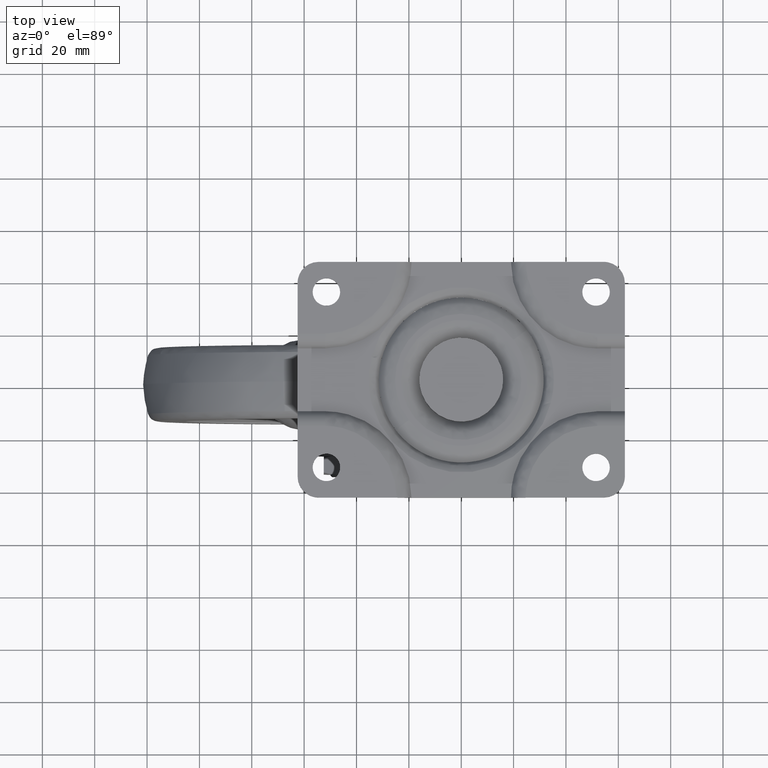
[diagram: clean part render]
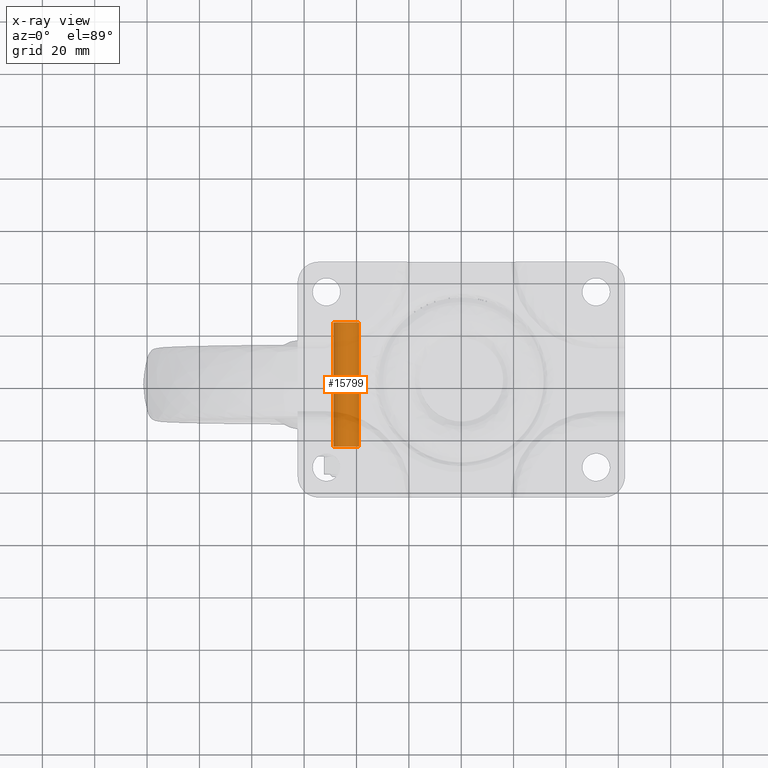
[diagram: x-ray — body ghosted, one internal face saturated and labeled with its STEP entity id]
A machine part, top view, then the same camera in x-ray: the body is ghosted and one INTERNAL B-rep face — a face not visible from any outside direction — is saturated and labeled: STEP entity #15799.
In plain terms, the highlighted face is a freeform B-spline surface patch.
Its self-contained STEP definition (entity closure, byte-faithful):
#15344=CARTESIAN_POINT('',(-41.313502063021957,23.721755696872950,-108.283042704020200));
#15345=VERTEX_POINT('',#15344);
#15346=CARTESIAN_POINT('',(-39.118519964524523,23.721755696872929,-113.582198070313890));
#15347=VERTEX_POINT('',#15346);
#15348=CARTESIAN_POINT('',(-41.313502063021957,23.721755696872957,-108.283042704020250));
#15349=CARTESIAN_POINT('',(-38.999999999930928,23.721755696872954,-109.756905985890090));
#15350=CARTESIAN_POINT('',(-38.999999999959030,23.721755696872940,-112.499999999915500));
#15351=CARTESIAN_POINT('',(-38.999999999964650,23.721755696872933,-113.047589058698190));
#15352=CARTESIAN_POINT('',(-39.118519964524523,23.721755696872929,-113.582198070313880));
#15360=(BOUNDED_CURVE()B_SPLINE_CURVE(2,(#15348,#15349,#15350,#15351,#15352),.UNSPECIFIED.,.F.,.U.)B_SPLINE_CURVE_WITH_KNOTS((3,2,3),(0.091950072917915,0.250000000000000,0.287040114693781),.UNSPECIFIED.)CURVE()GEOMETRIC_REPRESENTATION_ITEM()RATIONAL_B_SPLINE_CURVE((0.863791041263228,0.814832992494787,1.0,0.956604806328477,0.926068516262970))REPRESENTATION_ITEM(''));
#15361=EDGE_CURVE('',#15345,#15347,#15360,.T.);
#15428=CARTESIAN_POINT('',(-44.0,23.721755696872901,-107.500000000000100));
#15429=VERTEX_POINT('',#15428);
#15430=CARTESIAN_POINT('',(-44.0,23.721755696872901,-107.500000000000100));
#15431=CARTESIAN_POINT('',(-42.542632969461366,23.721755696872929,-107.499999999936620));
#15432=CARTESIAN_POINT('',(-41.313502063021957,23.721755696872957,-108.283042704020250));
#15440=(BOUNDED_CURVE()B_SPLINE_CURVE(2,(#15430,#15431,#15432),.UNSPECIFIED.,.F.,.U.)B_SPLINE_CURVE_WITH_KNOTS((3,3),(0.0,0.091950072917915),.UNSPECIFIED.)CURVE()GEOMETRIC_REPRESENTATION_ITEM()RATIONAL_B_SPLINE_CURVE((1.0,0.892273788691760,0.863791041263228))REPRESENTATION_ITEM(''));
#15441=EDGE_CURVE('',#15429,#15345,#15440,.T.);
#15449=CARTESIAN_POINT('',(-48.881480035475477,23.721755696872929,-111.417801929686110));
#15450=VERTEX_POINT('',#15449);
#15466=CARTESIAN_POINT('',(-48.881480035475477,23.721755696872926,-111.417801929686120));
#15467=CARTESIAN_POINT('',(-48.012924257776049,23.721755696872915,-107.500000000016390));
#15468=CARTESIAN_POINT('',(-44.0,23.721755696872901,-107.500000000000100));
#15476=(BOUNDED_CURVE()B_SPLINE_CURVE(2,(#15466,#15467,#15468),.UNSPECIFIED.,.F.,.U.)B_SPLINE_CURVE_WITH_KNOTS((3,3),(0.787040114693780,1.0),.UNSPECIFIED.)CURVE()GEOMETRIC_REPRESENTATION_ITEM()RATIONAL_B_SPLINE_CURVE((0.926068516262970,0.750501974858071,1.0))REPRESENTATION_ITEM(''));
#15477=EDGE_CURVE('',#15450,#15429,#15476,.T.);
#15695=CARTESIAN_POINT('',(-39.118518167389162,-23.724622602427601,-113.582189963832900));
#15696=VERTEX_POINT('',#15695);
#15697=CARTESIAN_POINT('',(-39.118518167389162,-23.724622602427601,-113.582189963832900));
#15698=CARTESIAN_POINT('',(-39.118519964524523,23.721755696872929,-113.582198070313890));
#15699=QUASI_UNIFORM_CURVE('',1,(#15697,#15698),.UNSPECIFIED.,.F.,.U.);
#15700=EDGE_CURVE('',#15696,#15347,#15699,.T.);
#15717=CARTESIAN_POINT('',(-48.881481832610852,-23.724622602427601,-111.417810036167100));
#15718=VERTEX_POINT('',#15717);
#15734=CARTESIAN_POINT('',(-48.881481832610852,-23.724622602427601,-111.417810036167100));
#15735=CARTESIAN_POINT('',(-48.881480035475477,23.721755696872929,-111.417801929686110));
#15736=QUASI_UNIFORM_CURVE('',1,(#15734,#15735),.UNSPECIFIED.,.F.,.U.);
#15737=EDGE_CURVE('',#15718,#15450,#15736,.T.);
#15744=CARTESIAN_POINT('',(-48.881480035599608,-24.910782059910119,-111.417801930309490));
#15745=CARTESIAN_POINT('',(-47.799281965909103,-24.910782059910122,-106.536321894709890));
#15746=CARTESIAN_POINT('',(-42.917801930309501,-24.910782059910119,-107.618519964400410));
#15747=CARTESIAN_POINT('',(-38.036321894709900,-24.910782059910122,-108.700718034090900));
#15748=CARTESIAN_POINT('',(-39.118519964400392,-24.910782059910119,-113.582198069690510));
#15749=CARTESIAN_POINT('',(-48.881480035599608,24.937569140792530,-111.417801930309490));
#15750=CARTESIAN_POINT('',(-47.799281965909103,24.937569140792537,-106.536321894709890));
#15751=CARTESIAN_POINT('',(-42.917801930309501,24.937569140792530,-107.618519964400410));
#15752=CARTESIAN_POINT('',(-38.036321894709900,24.937569140792537,-108.700718034090900));
#15753=CARTESIAN_POINT('',(-39.118519964400392,24.937569140792530,-113.582198069690510));
#15761=(BOUNDED_SURFACE()B_SPLINE_SURFACE(2,1,((#15744,#15749),(#15745,#15750),(#15746,#15751),(#15747,#15752),(#15748,#15753)),.UNSPECIFIED.,.F.,.F.,.U.)B_SPLINE_SURFACE_WITH_KNOTS((3,2,3),(2,2),(0.0,8.284271247461804,16.568542494923609),(0.0,49.848351200702659),.UNSPECIFIED.)GEOMETRIC_REPRESENTATION_ITEM()RATIONAL_B_SPLINE_SURFACE(((1.0,1.0),(0.707106781186548,0.707106781186548),(1.0,1.0),(0.707106781186548,0.707106781186548),(1.0,1.0)))REPRESENTATION_ITEM('')SURFACE());
#15762=ORIENTED_EDGE('',*,*,#15361,.F.);
#15763=ORIENTED_EDGE('',*,*,#15441,.F.);
#15764=ORIENTED_EDGE('',*,*,#15477,.F.);
#15765=ORIENTED_EDGE('',*,*,#15737,.F.);
#15766=CARTESIAN_POINT('',(-44.0,-23.724622602427601,-107.500000000000100));
#15767=VERTEX_POINT('',#15766);
#15768=CARTESIAN_POINT('',(-48.881481832610845,-23.724622602427598,-111.417810036167040));
#15769=CARTESIAN_POINT('',(-48.012931083737470,-23.724622602427591,-107.500000000000820));
#15770=CARTESIAN_POINT('',(-44.0,-23.724622602427601,-107.500000000000100));
#15778=(BOUNDED_CURVE()B_SPLINE_CURVE(2,(#15768,#15769,#15770),.UNSPECIFIED.,.F.,.U.)B_SPLINE_CURVE_WITH_KNOTS((3,3),(0.787039842829146,1.0),.UNSPECIFIED.)CURVE()GEOMETRIC_REPRESENTATION_ITEM()RATIONAL_B_SPLINE_CURVE((0.926068964520230,0.750501656348839,1.0))REPRESENTATION_ITEM(''));
#15779=EDGE_CURVE('',#15718,#15767,#15778,.T.);
#15780=ORIENTED_EDGE('',*,*,#15779,.T.);
#15781=CARTESIAN_POINT('',(-44.0,-23.724622602427601,-107.500000000000100));
#15782=CARTESIAN_POINT('',(-39.000000000002764,-23.724622602427598,-107.499999999999470));
#15783=CARTESIAN_POINT('',(-39.000000000006132,-23.724622602427601,-112.499999999998710));
#15784=CARTESIAN_POINT('',(-39.000000000006501,-23.724622602427605,-113.047584857293150));
#15785=CARTESIAN_POINT('',(-39.118518167389162,-23.724622602427601,-113.582189963832990));
#15793=(BOUNDED_CURVE()B_SPLINE_CURVE(2,(#15781,#15782,#15783,#15784,#15785),.UNSPECIFIED.,.F.,.U.)B_SPLINE_CURVE_WITH_KNOTS((3,2,3),(0.0,0.250000000000000,0.287039842829145),.UNSPECIFIED.)CURVE()GEOMETRIC_REPRESENTATION_ITEM()RATIONAL_B_SPLINE_CURVE((1.0,0.707106781186548,1.0,0.956605124837709,0.926068964520231))REPRESENTATION_ITEM(''));
#15794=EDGE_CURVE('',#15767,#15696,#15793,.T.);
#15795=ORIENTED_EDGE('',*,*,#15794,.T.);
#15796=ORIENTED_EDGE('',*,*,#15700,.T.);
#15797=EDGE_LOOP('',(#15762,#15763,#15764,#15765,#15780,#15795,#15796));
#15798=FACE_OUTER_BOUND('',#15797,.T.);
#15799=ADVANCED_FACE('',(#15798),#15761,.T.);